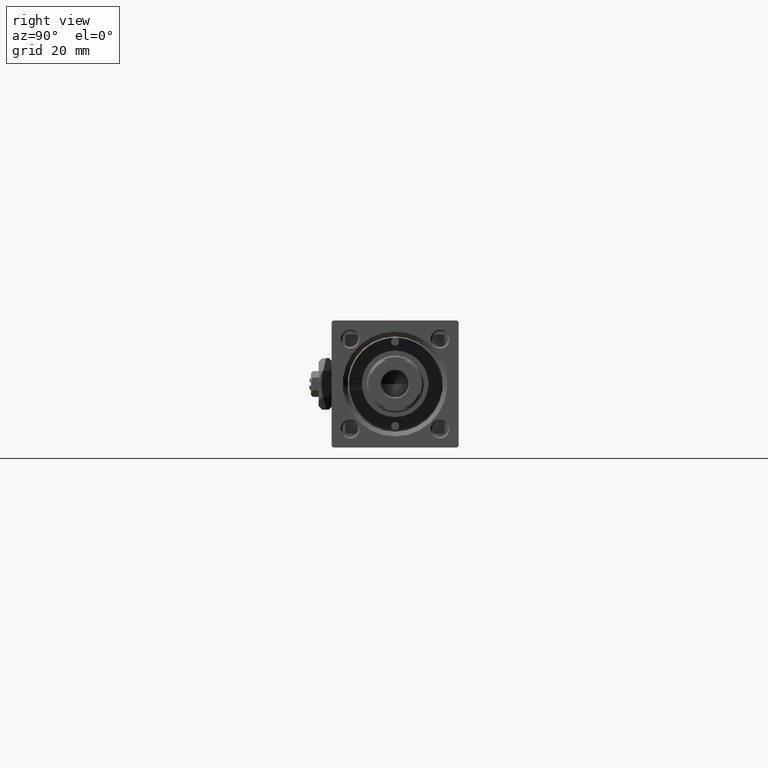
[diagram: clean part render]
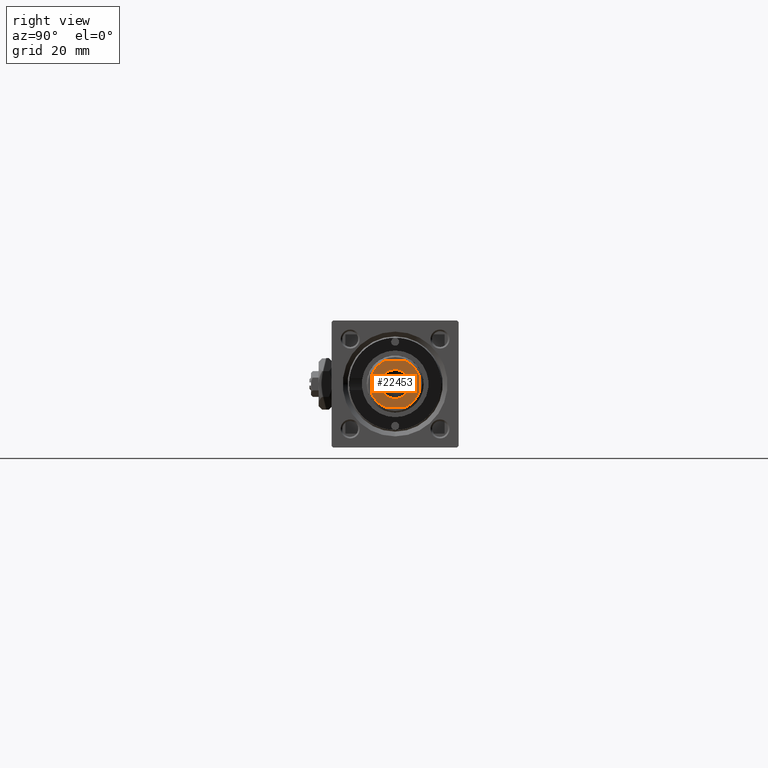
[diagram: same view with one face highlighted and labeled with its STEP entity id]
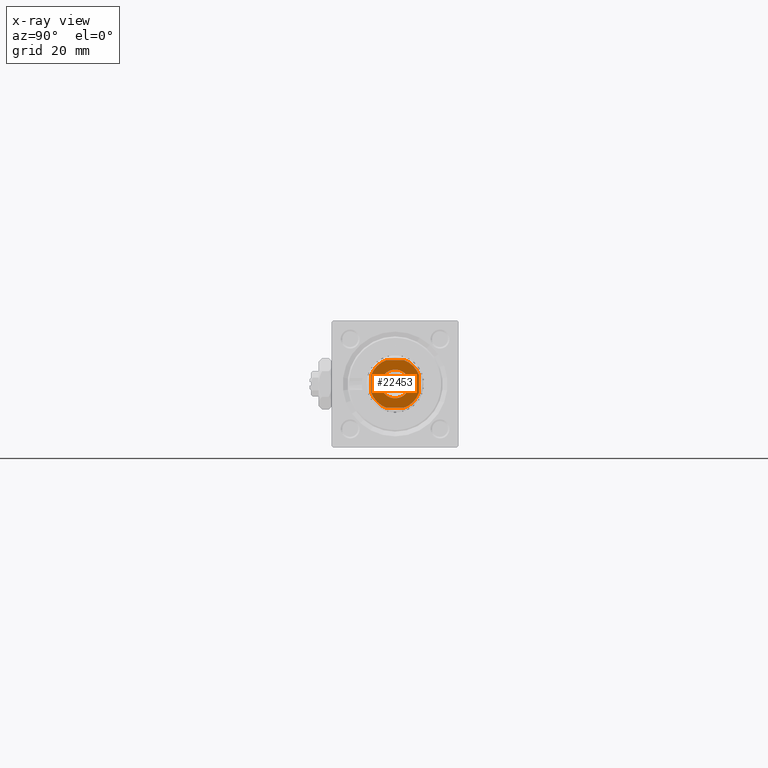
[diagram: x-ray of the same camera — body ghosted, the highlighted face saturated]
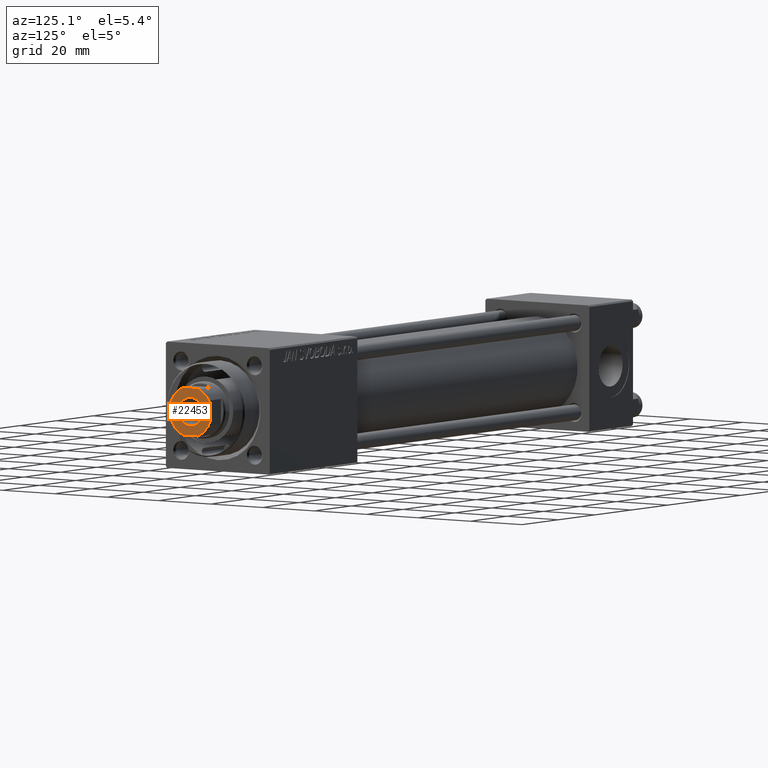
[diagram: same view with one face highlighted and labeled with its STEP entity id]
A machine part, right view. The second image highlights one B-rep face of the part: STEP entity #22453.
The next image is the same camera in x-ray: the body ghosted, the highlighted face saturated — about 0% of this face is hidden behind the body in this view.
A second angle (auxiliary view) of the same face is appended — the face is thin or edge-on in the first view.
In plain terms, the highlighted planar face has unit normal (1, 0, 0).
Its self-contained STEP definition (entity closure, byte-faithful):
#501 = ORIENTED_EDGE ( 'NONE', *, *, #20300, .T. ) ;
#557 = ORIENTED_EDGE ( 'NONE', *, *, #44766, .T. ) ;
#1205 = CARTESIAN_POINT ( 'NONE',  ( 0.000000000000000000, 0.000000000000000000, 190.0000000000000000 ) ) ;
#1343 = ORIENTED_EDGE ( 'NONE', *, *, #32867, .T. ) ;
#1466 = DIRECTION ( 'NONE',  ( 1.000000000000000000, 0.000000000000000000, 0.000000000000000000 ) ) ;
#1953 = EDGE_CURVE ( 'NONE', #13784, #45426, #13689, .T. ) ;
#2992 = CARTESIAN_POINT ( 'NONE',  ( 7.500000000000000000, 7.500000000000000000, 190.0000000000000000 ) ) ;
#3187 = DIRECTION ( 'NONE',  ( -0.000000000000000000, 0.000000000000000000, 1.000000000000000000 ) ) ;
#3437 = CARTESIAN_POINT ( 'NONE',  ( -2.783882181414448098, -7.500000000000000000, 190.0000000000000000 ) ) ;
#4202 = CARTESIAN_POINT ( 'NONE',  ( -7.499999999999998224, -7.500000000000000000, 190.0000000000000000 ) ) ;
#4226 = VERTEX_POINT ( 'NONE', #7602 ) ;
#5514 = ORIENTED_EDGE ( 'NONE', *, *, #49947, .T. ) ;
#5620 = CARTESIAN_POINT ( 'NONE',  ( -7.500000000000000000, 7.499999999999998224, 190.0000000000000000 ) ) ;
#6098 = VERTEX_POINT ( 'NONE', #9542 ) ;
#6495 = EDGE_CURVE ( 'NONE', #35485, #4226, #7030, .T. ) ;
#6784 = DIRECTION ( 'NONE',  ( 0.000000000000000000, -0.000000000000000000, -1.000000000000000000 ) ) ;
#6847 = DIRECTION ( 'NONE',  ( 1.000000000000000000, 0.000000000000000000, 0.000000000000000000 ) ) ;
#6949 = ORIENTED_EDGE ( 'NONE', *, *, #10191, .T. ) ;
#7030 = CIRCLE ( 'NONE', #22953, 7.999999999999783284 ) ;
#7491 = VECTOR ( 'NONE', #26622, 1000.000000000000000 ) ;
#7602 = CARTESIAN_POINT ( 'NONE',  ( 7.500000000000000888, -2.783882181414385037, 190.0000000000000000 ) ) ;
#9542 = CARTESIAN_POINT ( 'NONE',  ( -7.499999999999997335, -2.783882181414453871, 190.0000000000000000 ) ) ;
#10191 = EDGE_CURVE ( 'NONE', #35239, #15244, #25737, .T. ) ;
#10608 = LINE ( 'NONE', #2992, #7491 ) ;
#10735 = CARTESIAN_POINT ( 'NONE',  ( 0.000000000000000000, 0.000000000000000000, 190.0000000000000000 ) ) ;
#10844 = VERTEX_POINT ( 'NONE', #16008 ) ;
#12675 = DIRECTION ( 'NONE',  ( -1.000000000000000000, -1.156482317317871478E-16, -0.000000000000000000 ) ) ;
#13486 = CARTESIAN_POINT ( 'NONE',  ( -4.550000000000054001, 5.572142936120522408E-16, 190.0000000000000000 ) ) ;
#13689 = CIRCLE ( 'NONE', #14510, 4.550000000000054001 ) ;
#13762 = DIRECTION ( 'NONE',  ( -0.000000000000000000, 0.000000000000000000, 1.000000000000000000 ) ) ;
#13784 = VERTEX_POINT ( 'NONE', #21379 ) ;
#14510 = AXIS2_PLACEMENT_3D ( 'NONE', #1205, #45031, #48719 ) ;
#14882 = CARTESIAN_POINT ( 'NONE',  ( 2.783882181414387702, -7.500000000000000000, 190.0000000000000000 ) ) ;
#15244 = VERTEX_POINT ( 'NONE', #50671 ) ;
#16008 = CARTESIAN_POINT ( 'NONE',  ( 7.500000000000000888, 2.783882181414386370, 190.0000000000000000 ) ) ;
#17146 = VECTOR ( 'NONE', #44602, 1000.000000000000000 ) ;
#18204 = ORIENTED_EDGE ( 'NONE', *, *, #41305, .T. ) ;
#19198 = VERTEX_POINT ( 'NONE', #3437 ) ;
#20300 = EDGE_CURVE ( 'NONE', #10844, #35239, #36601, .T. ) ;
#21379 = CARTESIAN_POINT ( 'NONE',  ( 4.550000000000054001, 0.000000000000000000, 190.0000000000000000 ) ) ;
#21548 = CARTESIAN_POINT ( 'NONE',  ( 0.000000000000000000, 0.000000000000000000, 190.0000000000000000 ) ) ;
#21969 = CIRCLE ( 'NONE', #30361, 7.999999999999803713 ) ;
#22059 = DIRECTION ( 'NONE',  ( -0.000000000000000000, 0.000000000000000000, 1.000000000000000000 ) ) ;
#22453 = ADVANCED_FACE ( 'NONE', ( #48967, #49237 ), #37655, .T. ) ;
#22653 = VECTOR ( 'NONE', #25821, 1000.000000000000000 ) ;
#22953 = AXIS2_PLACEMENT_3D ( 'NONE', #21548, #22059, #26006 ) ;
#23697 = CIRCLE ( 'NONE', #50542, 7.999999999999803713 ) ;
#23770 = DIRECTION ( 'NONE',  ( 1.000000000000000000, 0.000000000000000000, 0.000000000000000000 ) ) ;
#24863 = CIRCLE ( 'NONE', #49154, 4.550000000000054001 ) ;
#25294 = LINE ( 'NONE', #5620, #22653 ) ;
#25437 = LINE ( 'NONE', #4202, #17146 ) ;
#25737 = LINE ( 'NONE', #49885, #50648 ) ;
#25821 = DIRECTION ( 'NONE',  ( 1.156482317317871725E-16, -1.000000000000000000, 0.000000000000000000 ) ) ;
#26006 = DIRECTION ( 'NONE',  ( 1.000000000000000000, 0.000000000000000000, 0.000000000000000000 ) ) ;
#26226 = EDGE_CURVE ( 'NONE', #4226, #10844, #10608, .T. ) ;
#26622 = DIRECTION ( 'NONE',  ( -1.156482317317871478E-16, 1.000000000000000000, -0.000000000000000000 ) ) ;
#27327 = EDGE_LOOP ( 'NONE', ( #28291, #5514 ) ) ;
#27579 = CARTESIAN_POINT ( 'NONE',  ( 0.000000000000000000, 0.000000000000000000, 190.0000000000000000 ) ) ;
#28291 = ORIENTED_EDGE ( 'NONE', *, *, #1953, .T. ) ;
#29523 = CARTESIAN_POINT ( 'NONE',  ( 0.000000000000000000, 0.000000000000000000, 190.0000000000000000 ) ) ;
#30180 = VERTEX_POINT ( 'NONE', #41057 ) ;
#30361 = AXIS2_PLACEMENT_3D ( 'NONE', #31653, #39518, #23770 ) ;
#31653 = CARTESIAN_POINT ( 'NONE',  ( 0.000000000000000000, 0.000000000000000000, 190.0000000000000000 ) ) ;
#32867 = EDGE_CURVE ( 'NONE', #30180, #6098, #25294, .T. ) ;
#32945 = DIRECTION ( 'NONE',  ( -0.000000000000000000, 0.000000000000000000, 1.000000000000000000 ) ) ;
#33465 = CARTESIAN_POINT ( 'NONE',  ( 0.000000000000000000, 0.000000000000000000, 190.0000000000000000 ) ) ;
#34424 = CARTESIAN_POINT ( 'NONE',  ( 2.783882181414388590, 7.499999999999999112, 190.0000000000000000 ) ) ;
#35239 = VERTEX_POINT ( 'NONE', #34424 ) ;
#35485 = VERTEX_POINT ( 'NONE', #14882 ) ;
#36601 = CIRCLE ( 'NONE', #45876, 7.999999999999783284 ) ;
#37568 = EDGE_LOOP ( 'NONE', ( #42829, #501, #6949, #18204, #1343, #43046, #557, #48353 ) ) ;
#37655 = PLANE ( 'NONE',  #46779 ) ;
#39518 = DIRECTION ( 'NONE',  ( -0.000000000000000000, 0.000000000000000000, 1.000000000000000000 ) ) ;
#40462 = EDGE_CURVE ( 'NONE', #6098, #19198, #21969, .T. ) ;
#41057 = CARTESIAN_POINT ( 'NONE',  ( -7.499999999999999112, 2.783882181414451651, 190.0000000000000000 ) ) ;
#41305 = EDGE_CURVE ( 'NONE', #15244, #30180, #23697, .T. ) ;
#42829 = ORIENTED_EDGE ( 'NONE', *, *, #26226, .T. ) ;
#43046 = ORIENTED_EDGE ( 'NONE', *, *, #40462, .T. ) ;
#44602 = DIRECTION ( 'NONE',  ( 1.000000000000000000, 0.000000000000000000, 0.000000000000000000 ) ) ;
#44759 = DIRECTION ( 'NONE',  ( 1.000000000000000000, 0.000000000000000000, 0.000000000000000000 ) ) ;
#44766 = EDGE_CURVE ( 'NONE', #19198, #35485, #25437, .T. ) ;
#45031 = DIRECTION ( 'NONE',  ( 0.000000000000000000, -0.000000000000000000, -1.000000000000000000 ) ) ;
#45426 = VERTEX_POINT ( 'NONE', #13486 ) ;
#45876 = AXIS2_PLACEMENT_3D ( 'NONE', #27579, #3187, #6847 ) ;
#46692 = DIRECTION ( 'NONE',  ( 1.000000000000000000, 0.000000000000000000, 0.000000000000000000 ) ) ;
#46779 = AXIS2_PLACEMENT_3D ( 'NONE', #29523, #13762, #1466 ) ;
#48353 = ORIENTED_EDGE ( 'NONE', *, *, #6495, .T. ) ;
#48719 = DIRECTION ( 'NONE',  ( 1.000000000000000000, 0.000000000000000000, 0.000000000000000000 ) ) ;
#48967 = FACE_BOUND ( 'NONE', #27327, .T. ) ;
#49154 = AXIS2_PLACEMENT_3D ( 'NONE', #10735, #6784, #46692 ) ;
#49237 = FACE_OUTER_BOUND ( 'NONE', #37568, .T. ) ;
#49885 = CARTESIAN_POINT ( 'NONE',  ( -7.500000000000000000, 7.499999999999998224, 190.0000000000000000 ) ) ;
#49947 = EDGE_CURVE ( 'NONE', #45426, #13784, #24863, .T. ) ;
#50542 = AXIS2_PLACEMENT_3D ( 'NONE', #33465, #32945, #44759 ) ;
#50648 = VECTOR ( 'NONE', #12675, 1000.000000000000000 ) ;
#50671 = CARTESIAN_POINT ( 'NONE',  ( -2.783882181414451651, 7.499999999999999112, 190.0000000000000000 ) ) ;